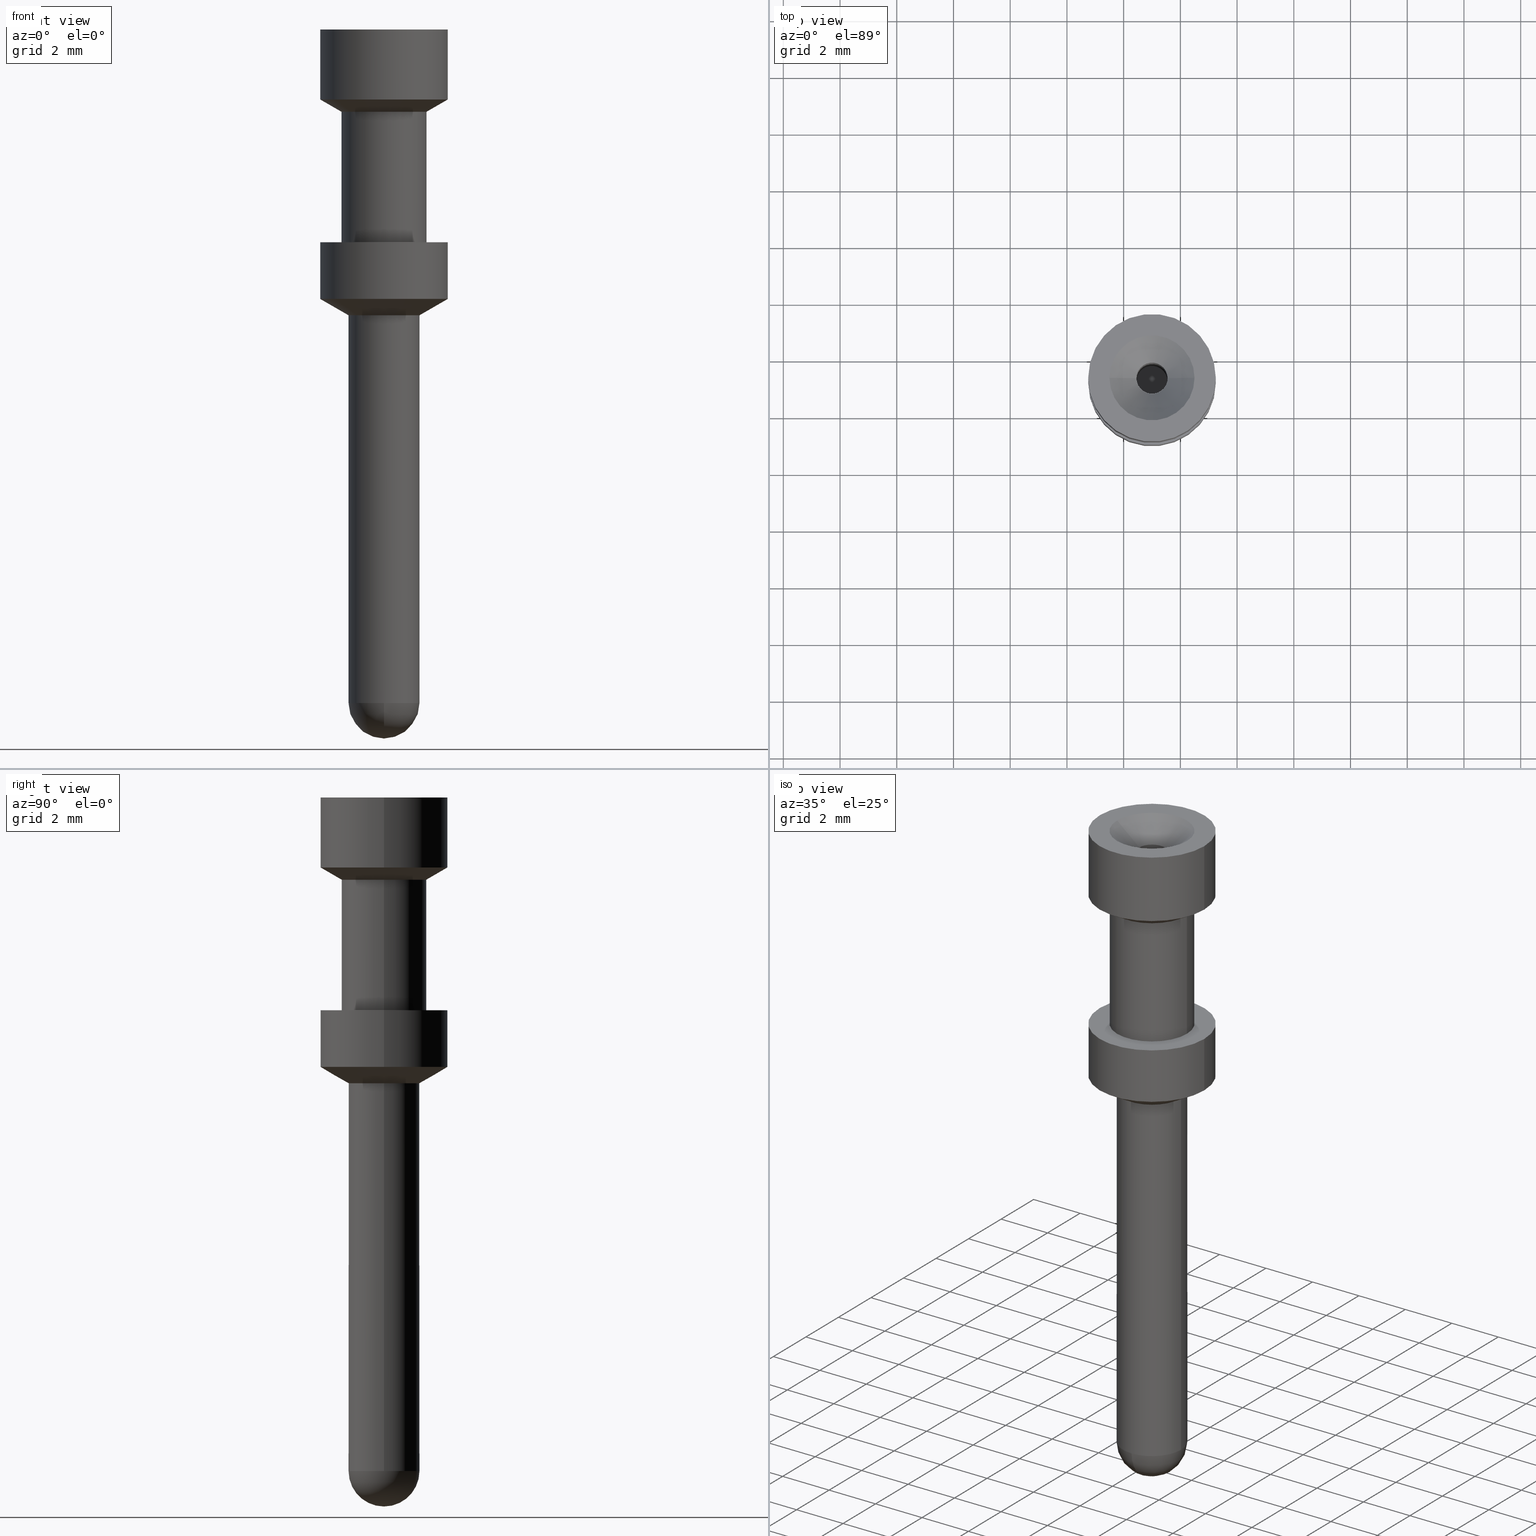
[diagram: canonical four-view strip — front | top / right | iso, engineering-drawing reading convention]
A machine part, canonical four-view strip (front | top / right | iso — engineering-drawing reading convention). The complete STEP part file that produces these views, byte-faithful:
ISO-10303-21;
HEADER;
FILE_DESCRIPTION(('Creo Elements/Direct Modeling STEP Export'),'2;1');
FILE_NAME(
'C:/Users/TECCAD~1/AppData/Local/Temp/0ln7uvk48h760uf2188/0ln7uvk48h760u
h2188','2017-01-02T14:24:07',(''),(''),
'PTC Creo Elements/Direct Modeling STEP processor for AP214 (Solid Model
)',
'PTC Creo Elements/Direct Modeling 19.0E  27-Jun-2016 (C) Parametric Tec
hnology GmbH','');
FILE_SCHEMA(('AUTOMOTIVE_DESIGN { 1 0 10303 214 1 1 1 1 }'));
ENDSEC;
DATA;
#10=CARTESIAN_POINT('',(31.1869705,72.157183,-6.6));
#20=DIRECTION('',(-0.,1.,1.83697019872103E-16));
#30=DIRECTION('',(1.,0.,0.));
#40=AXIS2_PLACEMENT_3D('',#10,#20,#30);
#50=PLANE('',#40);
#60=CARTESIAN_POINT('',(33.587952,72.157183,-6.6));
#70=DIRECTION('',(0.,1.,1.83697019872103E-16));
#80=DIRECTION('',(1.,0.,0.));
#90=AXIS2_PLACEMENT_3D('',#60,#70,#80);
#100=CIRCLE('',#90,1.5);
#110=CARTESIAN_POINT('',(32.087952,72.157183,-6.6));
#120=VERTEX_POINT('',#110);
#130=CARTESIAN_POINT('',(35.087952,72.157183,-6.6));
#140=VERTEX_POINT('',#130);
#150=EDGE_CURVE('',#120,#140,#100,.T.);
#160=ORIENTED_EDGE('',*,*,#150,.T.);
#170=EDGE_CURVE('',#140,#120,#100,.T.);
#180=ORIENTED_EDGE('',*,*,#170,.T.);
#190=EDGE_LOOP('',(#180,#160));
#200=FACE_BOUND('',#190,.T.);
#210=CARTESIAN_POINT('',(33.587952,72.157183,-6.59999999999999));
#220=DIRECTION('',(0.,-1.,-1.83697019872103E-16));
#230=DIRECTION('',(1.,0.,0.));
#240=AXIS2_PLACEMENT_3D('',#210,#220,#230);
#250=CIRCLE('',#240,2.25);
#260=CARTESIAN_POINT('',(35.837952,72.157183,-6.59999999999999));
#270=VERTEX_POINT('',#260);
#280=CARTESIAN_POINT('',(31.337952,72.157183,-6.59999999999999));
#290=VERTEX_POINT('',#280);
#300=EDGE_CURVE('',#270,#290,#250,.T.);
#310=ORIENTED_EDGE('',*,*,#300,.T.);
#320=EDGE_CURVE('',#290,#270,#250,.T.);
#330=ORIENTED_EDGE('',*,*,#320,.T.);
#340=EDGE_LOOP('',(#330,#310));
#350=FACE_OUTER_BOUND('',#340,.T.);
#360=ADVANCED_FACE('',(#200,#350),#50,.F.);
#370=COLOUR_RGB('',0.752941250801086,0.600000023841858,0.129411771893501
);
#380=FILL_AREA_STYLE_COLOUR('',#370);
#390=FILL_AREA_STYLE('',(#380));
#400=SURFACE_STYLE_FILL_AREA(#390);
#410=SURFACE_SIDE_STYLE('',(#400));
#420=SURFACE_STYLE_USAGE(.BOTH.,#410);
#430=PRESENTATION_STYLE_ASSIGNMENT((#420));
#440=CARTESIAN_POINT('',(33.587952,81.7230824532382,-6.59999999999999));
#450=DIRECTION('',(0.,-1.,0.));
#460=DIRECTION('',(-1.,0.,0.));
#470=AXIS2_PLACEMENT_3D('',#440,#450,#460);
#480=CYLINDRICAL_SURFACE('',#470,1.25);
#490=CARTESIAN_POINT('',(32.337952,81.7230824532382,-6.59999999999999));
#500=DIRECTION('',(0.,-1.,0.));
#510=VECTOR('',#500,1.);
#520=LINE('',#490,#510);
#530=CARTESIAN_POINT('',(32.337952,88.407183,-6.59999999999999));
#540=VERTEX_POINT('',#530);
#550=CARTESIAN_POINT('',(32.337952,74.7345332691897,-6.59999999999999));
#560=VERTEX_POINT('',#550);
#570=EDGE_CURVE('',#540,#560,#520,.T.);
#580=ORIENTED_EDGE('',*,*,#570,.T.);
#590=CARTESIAN_POINT('',(33.587952,88.407183,-6.59999999999999));
#600=DIRECTION('',(0.,-1.,0.));
#610=DIRECTION('',(-1.,0.,0.));
#620=AXIS2_PLACEMENT_3D('',#590,#600,#610);
#630=CIRCLE('',#620,1.25);
#640=CARTESIAN_POINT('',(33.587952,88.407183,-5.34999999999999));
#650=VERTEX_POINT('',#640);
#660=EDGE_CURVE('',#650,#540,#630,.T.);
#670=ORIENTED_EDGE('',*,*,#660,.T.);
#680=CARTESIAN_POINT('',(34.837952,88.407183,-6.59999999999999));
#690=VERTEX_POINT('',#680);
#700=EDGE_CURVE('',#690,#650,#630,.T.);
#710=ORIENTED_EDGE('',*,*,#700,.T.);
#720=CARTESIAN_POINT('',(34.837952,81.7230824532382,-6.59999999999999));
#730=DIRECTION('',(0.,-1.,0.));
#740=VECTOR('',#730,1.);
#750=LINE('',#720,#740);
#760=CARTESIAN_POINT('',(34.837952,74.7345332691897,-6.59999999999999));
#770=VERTEX_POINT('',#760);
#780=EDGE_CURVE('',#690,#770,#750,.T.);
#790=ORIENTED_EDGE('',*,*,#780,.F.);
#800=CARTESIAN_POINT('',(33.587952,74.7345332691897,-6.59999999999999));
#810=DIRECTION('',(0.,-1.,0.));
#820=DIRECTION('',(-1.,0.,0.));
#830=AXIS2_PLACEMENT_3D('',#800,#810,#820);
#840=CIRCLE('',#830,1.25);
#850=EDGE_CURVE('',#770,#560,#840,.T.);
#860=ORIENTED_EDGE('',*,*,#850,.F.);
#870=EDGE_LOOP('',(#860,#790,#710,#670,#580));
#880=FACE_OUTER_BOUND('',#870,.T.);
#890=ADVANCED_FACE('',(#880),#480,.T.);
#900=COLOUR_RGB('',0.752941250801086,0.600000023841858,0.129411771893501
);
#910=FILL_AREA_STYLE_COLOUR('',#900);
#920=FILL_AREA_STYLE('',(#910));
#930=SURFACE_STYLE_FILL_AREA(#920);
#940=SURFACE_SIDE_STYLE('',(#930));
#950=SURFACE_STYLE_USAGE(.BOTH.,#940);
#960=PRESENTATION_STYLE_ASSIGNMENT((#950));
#970=CARTESIAN_POINT('',(33.587952,74.5959692045842,-6.59999999999999));
#980=DIRECTION('',(0.,-1.,0.));
#990=DIRECTION('',(-1.,-0.,0.));
#1000=AXIS2_PLACEMENT_3D('',#970,#980,#990);
#1010=CONICAL_SURFACE('',#1000,1.49000000000001,1.04719755119656);
#1020=CARTESIAN_POINT('',(35.077952,74.5959692045842,-6.59999999999999))
;
#1030=DIRECTION('',(0.866025403784419,-0.500000000000034,0.));
#1040=VECTOR('',#1030,1.72050380218513);
#1050=LINE('',#1020,#1040);
#1060=CARTESIAN_POINT('',(35.837952,74.157183,-6.59999999999999));
#1070=VERTEX_POINT('',#1060);
#1080=EDGE_CURVE('',#770,#1070,#1050,.T.);
#1090=ORIENTED_EDGE('',*,*,#1080,.T.);
#1100=EDGE_CURVE('',#560,#770,#840,.T.);
#1110=ORIENTED_EDGE('',*,*,#1100,.T.);
#1120=CARTESIAN_POINT('',(32.097952,74.5959692045842,-6.59999999999999))
;
#1130=DIRECTION('',(-0.866025403784419,-0.500000000000034,0.));
#1140=VECTOR('',#1130,1.72050380218513);
#1150=LINE('',#1120,#1140);
#1160=CARTESIAN_POINT('',(31.337952,74.157183,-6.59999999999999));
#1170=VERTEX_POINT('',#1160);
#1180=EDGE_CURVE('',#560,#1170,#1150,.T.);
#1190=ORIENTED_EDGE('',*,*,#1180,.F.);
#1200=CARTESIAN_POINT('',(33.587952,74.157183,-6.59999999999999));
#1210=DIRECTION('',(0.,-1.,0.));
#1220=DIRECTION('',(-1.,0.,0.));
#1230=AXIS2_PLACEMENT_3D('',#1200,#1210,#1220);
#1240=CIRCLE('',#1230,2.25);
#1250=EDGE_CURVE('',#1170,#1070,#1240,.T.);
#1260=ORIENTED_EDGE('',*,*,#1250,.F.);
#1270=EDGE_LOOP('',(#1260,#1190,#1110,#1090));
#1280=FACE_OUTER_BOUND('',#1270,.T.);
#1290=ADVANCED_FACE('',(#1280),#1010,.T.);
#1300=COLOUR_RGB('',0.752941250801086,0.600000023841858,
0.129411771893501);
#1310=FILL_AREA_STYLE_COLOUR('',#1300);
#1320=FILL_AREA_STYLE('',(#1310));
#1330=SURFACE_STYLE_FILL_AREA(#1320);
#1340=SURFACE_SIDE_STYLE('',(#1330));
#1350=SURFACE_STYLE_USAGE(.BOTH.,#1340);
#1360=PRESENTATION_STYLE_ASSIGNMENT((#1350));
#1370=CARTESIAN_POINT('',(33.587952,88.407183,-6.59999999999999));
#1380=DIRECTION('',(0.,1.,0.));
#1390=DIRECTION('',(0.,0.,1.));
#1400=AXIS2_PLACEMENT_3D('',#1370,#1380,#1390);
#1410=SPHERICAL_SURFACE('',#1400,1.25);
#1420=CARTESIAN_POINT('',(33.587952,88.407183,-7.84999999999999));
#1430=VERTEX_POINT('',#1420);
#1440=EDGE_CURVE('',#540,#1430,#630,.T.);
#1450=ORIENTED_EDGE('',*,*,#1440,.F.);
#1460=CARTESIAN_POINT('',(33.587952,88.407183,-6.59999999999999));
#1470=DIRECTION('',(1.,0.,0.));
#1480=DIRECTION('',(0.,-1.,0.));
#1490=AXIS2_PLACEMENT_3D('',#1460,#1470,#1480);
#1500=CIRCLE('',#1490,1.25);
#1510=CARTESIAN_POINT('',(33.587952,89.657183,-6.59999999999999));
#1520=VERTEX_POINT('',#1510);
#1530=EDGE_CURVE('',#1430,#1520,#1500,.T.);
#1540=ORIENTED_EDGE('',*,*,#1530,.F.);
#1550=EDGE_CURVE('',#1520,#650,#1500,.T.);
#1560=ORIENTED_EDGE('',*,*,#1550,.F.);
#1570=ORIENTED_EDGE('',*,*,#660,.F.);
#1580=EDGE_LOOP('',(#1570,#1560,#1540,#1450));
#1590=FACE_OUTER_BOUND('',#1580,.T.);
#1600=ADVANCED_FACE('',(#1590),#1410,.T.);
#1610=COLOUR_RGB('',0.752941250801086,0.600000023841858,
0.129411771893501);
#1620=FILL_AREA_STYLE_COLOUR('',#1610);
#1630=FILL_AREA_STYLE('',(#1620));
#1640=SURFACE_STYLE_FILL_AREA(#1630);
#1650=SURFACE_SIDE_STYLE('',(#1640));
#1660=SURFACE_STYLE_USAGE(.BOTH.,#1650);
#1670=PRESENTATION_STYLE_ASSIGNMENT((#1660));
#1680=CARTESIAN_POINT('',(33.587952,72.157183,-6.59999999999999));
#1690=DIRECTION('',(0.,-1.,-1.83697019872103E-16));
#1700=DIRECTION('',(1.,0.,0.));
#1710=AXIS2_PLACEMENT_3D('',#1680,#1690,#1700);
#1720=CYLINDRICAL_SURFACE('',#1710,2.25);
#1730=CARTESIAN_POINT('',(35.837952,72.157183,-6.59999999999999));
#1740=DIRECTION('',(0.,-1.,-1.83697019872103E-16));
#1750=VECTOR('',#1740,1.);
#1760=LINE('',#1730,#1750);
#1770=EDGE_CURVE('',#1070,#270,#1760,.T.);
#1780=ORIENTED_EDGE('',*,*,#1770,.T.);
#1790=ORIENTED_EDGE('',*,*,#1250,.T.);
#1800=CARTESIAN_POINT('',(31.337952,72.157183,-6.59999999999999));
#1810=DIRECTION('',(0.,-1.,-1.83697019872103E-16));
#1820=VECTOR('',#1810,1.);
#1830=LINE('',#1800,#1820);
#1840=EDGE_CURVE('',#1170,#290,#1830,.T.);
#1850=ORIENTED_EDGE('',*,*,#1840,.F.);
#1860=ORIENTED_EDGE('',*,*,#320,.F.);
#1870=EDGE_LOOP('',(#1860,#1850,#1790,#1780));
#1880=FACE_OUTER_BOUND('',#1870,.T.);
#1890=ADVANCED_FACE('',(#1880),#1720,.T.);
#1900=COLOUR_RGB('',0.752941250801086,0.600000023841858,
0.129411771893501);
#1910=FILL_AREA_STYLE_COLOUR('',#1900);
#1920=FILL_AREA_STYLE('',(#1910));
#1930=SURFACE_STYLE_FILL_AREA(#1920);
#1940=SURFACE_SIDE_STYLE('',(#1930));
#1950=SURFACE_STYLE_USAGE(.BOTH.,#1940);
#1960=PRESENTATION_STYLE_ASSIGNMENT((#1950));
#1970=CARTESIAN_POINT('',(33.587952,69.7272791894324,-6.6));
#1980=DIRECTION('',(0.,1.,1.83697019872103E-16));
#1990=DIRECTION('',(1.,0.,0.));
#2000=AXIS2_PLACEMENT_3D('',#1970,#1980,#1990);
#2010=CYLINDRICAL_SURFACE('',#2000,1.5);
#2020=CARTESIAN_POINT('',(32.087952,69.7272791894324,-6.6));
#2030=DIRECTION('',(0.,1.,1.83697019872103E-16));
#2040=VECTOR('',#2030,1.);
#2050=LINE('',#2020,#2040);
#2060=CARTESIAN_POINT('',(32.087952,67.557183,-6.6));
#2070=VERTEX_POINT('',#2060);
#2080=EDGE_CURVE('',#2070,#120,#2050,.T.);
#2090=ORIENTED_EDGE('',*,*,#2080,.T.);
#2100=CARTESIAN_POINT('',(33.587952,67.557183,-6.6));
#2110=DIRECTION('',(0.,-1.,-1.83697019872103E-16));
#2120=DIRECTION('',(-1.,9.66075982551395E-47,-5.25907270147341E-31));
#2130=AXIS2_PLACEMENT_3D('',#2100,#2110,#2120);
#2140=CIRCLE('',#2130,1.5);
#2150=CARTESIAN_POINT('',(35.087952,67.557183,-6.6));
#2160=VERTEX_POINT('',#2150);
#2170=EDGE_CURVE('',#2070,#2160,#2140,.T.);
#2180=ORIENTED_EDGE('',*,*,#2170,.F.);
#2190=CARTESIAN_POINT('',(35.087952,69.7272791894324,-6.6));
#2200=DIRECTION('',(0.,1.,1.83697019872103E-16));
#2210=VECTOR('',#2200,1.);
#2220=LINE('',#2190,#2210);
#2230=EDGE_CURVE('',#2160,#140,#2220,.T.);
#2240=ORIENTED_EDGE('',*,*,#2230,.F.);
#2250=ORIENTED_EDGE('',*,*,#170,.F.);
#2260=EDGE_LOOP('',(#2250,#2240,#2180,#2090));
#2270=FACE_OUTER_BOUND('',#2260,.T.);
#2280=ADVANCED_FACE('',(#2270),#2010,.T.);
#2290=COLOUR_RGB('',0.752941250801086,0.600000023841858,
0.129411771893501);
#2300=FILL_AREA_STYLE_COLOUR('',#2290);
#2310=FILL_AREA_STYLE('',(#2300));
#2320=SURFACE_STYLE_FILL_AREA(#2310);
#2330=SURFACE_SIDE_STYLE('',(#2320));
#2340=SURFACE_STYLE_USAGE(.BOTH.,#2330);
#2350=PRESENTATION_STYLE_ASSIGNMENT((#2340));
#2360=CARTESIAN_POINT('',(31.6858875,64.657183,-6.6));
#2370=DIRECTION('',(-0.,-1.,-1.83697019872103E-16));
#2380=DIRECTION('',(-1.,0.,0.));
#2390=AXIS2_PLACEMENT_3D('',#2360,#2370,#2380);
#2400=PLANE('',#2390);
#2410=CARTESIAN_POINT('',(33.587952,64.657183,-6.59999999999999));
#2420=DIRECTION('',(0.,-1.,0.));
#2430=DIRECTION('',(1.,0.,0.));
#2440=AXIS2_PLACEMENT_3D('',#2410,#2420,#2430);
#2450=CIRCLE('',#2440,1.5);
#2460=CARTESIAN_POINT('',(35.087952,64.657183,-6.59999999999999));
#2470=VERTEX_POINT('',#2460);
#2480=CARTESIAN_POINT('',(32.087952,64.657183,-6.59999999999999));
#2490=VERTEX_POINT('',#2480);
#2500=EDGE_CURVE('',#2470,#2490,#2450,.T.);
#2510=ORIENTED_EDGE('',*,*,#2500,.F.);
#2520=EDGE_CURVE('',#2490,#2470,#2450,.T.);
#2530=ORIENTED_EDGE('',*,*,#2520,.F.);
#2540=EDGE_LOOP('',(#2530,#2510));
#2550=FACE_BOUND('',#2540,.T.);
#2560=CARTESIAN_POINT('',(33.587952,64.657183,-6.59999999999999));
#2570=DIRECTION('',(0.,1.,0.));
#2580=DIRECTION('',(1.,0.,0.));
#2590=AXIS2_PLACEMENT_3D('',#2560,#2570,#2580);
#2600=CIRCLE('',#2590,2.25);
#2610=CARTESIAN_POINT('',(35.837952,64.657183,-6.59999999999999));
#2620=VERTEX_POINT('',#2610);
#2630=CARTESIAN_POINT('',(31.337952,64.657183,-6.59999999999999));
#2640=VERTEX_POINT('',#2630);
#2650=EDGE_CURVE('',#2620,#2640,#2600,.T.);
#2660=ORIENTED_EDGE('',*,*,#2650,.F.);
#2670=EDGE_CURVE('',#2640,#2620,#2600,.T.);
#2680=ORIENTED_EDGE('',*,*,#2670,.F.);
#2690=EDGE_LOOP('',(#2680,#2660));
#2700=FACE_OUTER_BOUND('',#2690,.T.);
#2710=ADVANCED_FACE('',(#2550,#2700),#2400,.T.);
#2720=COLOUR_RGB('',0.752941250801086,0.600000023841858,
0.129411771893501);
#2730=FILL_AREA_STYLE_COLOUR('',#2720);
#2740=FILL_AREA_STYLE('',(#2730));
#2750=SURFACE_STYLE_FILL_AREA(#2740);
#2760=SURFACE_SIDE_STYLE('',(#2750));
#2770=SURFACE_STYLE_USAGE(.BOTH.,#2760);
#2780=PRESENTATION_STYLE_ASSIGNMENT((#2770));
#2790=CARTESIAN_POINT('',(33.587952,65.8906766490539,-6.59999999999999))
;
#2800=DIRECTION('',(0.,1.,0.));
#2810=DIRECTION('',(1.,0.,0.));
#2820=AXIS2_PLACEMENT_3D('',#2790,#2800,#2810);
#2830=CYLINDRICAL_SURFACE('',#2820,2.25);
#2840=CARTESIAN_POINT('',(35.837952,65.8906766490539,-6.59999999999999))
;
#2850=DIRECTION('',(0.,1.,0.));
#2860=VECTOR('',#2850,1.);
#2870=LINE('',#2840,#2860);
#2880=CARTESIAN_POINT('',(35.837952,67.1241702981078,-6.59999999999999))
;
#2890=VERTEX_POINT('',#2880);
#2900=EDGE_CURVE('',#2620,#2890,#2870,.T.);
#2910=ORIENTED_EDGE('',*,*,#2900,.T.);
#2920=ORIENTED_EDGE('',*,*,#2670,.T.);
#2930=CARTESIAN_POINT('',(31.337952,65.8906766490539,-6.59999999999999))
;
#2940=DIRECTION('',(0.,1.,0.));
#2950=VECTOR('',#2940,1.);
#2960=LINE('',#2930,#2950);
#2970=CARTESIAN_POINT('',(31.337952,67.1241702981078,-6.59999999999999))
;
#2980=VERTEX_POINT('',#2970);
#2990=EDGE_CURVE('',#2640,#2980,#2960,.T.);
#3000=ORIENTED_EDGE('',*,*,#2990,.F.);
#3010=CARTESIAN_POINT('',(33.587952,67.1241702981078,-6.59999999999999))
;
#3020=DIRECTION('',(0.,1.,0.));
#3030=DIRECTION('',(1.,0.,0.));
#3040=AXIS2_PLACEMENT_3D('',#3010,#3020,#3030);
#3050=CIRCLE('',#3040,2.25);
#3060=EDGE_CURVE('',#2980,#2890,#3050,.T.);
#3070=ORIENTED_EDGE('',*,*,#3060,.F.);
#3080=EDGE_LOOP('',(#3070,#3000,#2920,#2910));
#3090=FACE_OUTER_BOUND('',#3080,.T.);
#3100=ADVANCED_FACE('',(#3090),#2830,.T.);
#3110=COLOUR_RGB('',0.752941250801086,0.600000023841858,
0.129411771893501);
#3120=FILL_AREA_STYLE_COLOUR('',#3110);
#3130=FILL_AREA_STYLE('',(#3120));
#3140=SURFACE_STYLE_FILL_AREA(#3130);
#3150=SURFACE_SIDE_STYLE('',(#3140));
#3160=SURFACE_STYLE_USAGE(.BOTH.,#3150);
#3170=PRESENTATION_STYLE_ASSIGNMENT((#3160));
#3180=CARTESIAN_POINT('',(33.587952,67.672653053838,-6.6));
#3190=DIRECTION('',(0.,-1.,0.));
#3200=DIRECTION('',(-1.,-0.,0.));
#3210=AXIS2_PLACEMENT_3D('',#3180,#3190,#3200);
#3220=CONICAL_SURFACE('',#3210,1.3,1.0471975511966);
#3230=CARTESIAN_POINT('',(32.287952,67.672653053838,-6.6));
#3240=DIRECTION('',(-0.866025403784439,-0.499999999999999,0.));
#3250=VECTOR('',#3240,1.50111069989302);
#3260=LINE('',#3230,#3250);
#3270=EDGE_CURVE('',#2070,#2980,#3260,.T.);
#3280=ORIENTED_EDGE('',*,*,#3270,.F.);
#3290=EDGE_CURVE('',#2890,#2980,#3050,.T.);
#3300=ORIENTED_EDGE('',*,*,#3290,.T.);
#3310=CARTESIAN_POINT('',(34.887952,67.672653053838,-6.6));
#3320=DIRECTION('',(0.866025403784439,-0.499999999999999,0.));
#3330=VECTOR('',#3320,1.50111069989302);
#3340=LINE('',#3310,#3330);
#3350=EDGE_CURVE('',#2160,#2890,#3340,.T.);
#3360=ORIENTED_EDGE('',*,*,#3350,.T.);
#3370=ORIENTED_EDGE('',*,*,#2170,.T.);
#3380=EDGE_LOOP('',(#3370,#3360,#3300,#3280));
#3390=FACE_OUTER_BOUND('',#3380,.T.);
#3400=ADVANCED_FACE('',(#3390),#3220,.T.);
#3410=COLOUR_RGB('',0.752941250801086,0.600000023841858,
0.129411771893501);
#3420=FILL_AREA_STYLE_COLOUR('',#3410);
#3430=FILL_AREA_STYLE('',(#3420));
#3440=SURFACE_STYLE_FILL_AREA(#3430);
#3450=SURFACE_SIDE_STYLE('',(#3440));
#3460=SURFACE_STYLE_USAGE(.BOTH.,#3450);
#3470=PRESENTATION_STYLE_ASSIGNMENT((#3460));
#3480=CARTESIAN_POINT('',(34.4711359235852,72.157183,-5.13594903847896))
;
#3490=DIRECTION('',(0.,-1.,0.));
#3500=DIRECTION('',(1.,0.,0.));
#3510=AXIS2_PLACEMENT_3D('',#3480,#3490,#3500);
#3520=PLANE('',#3510);
#3530=CARTESIAN_POINT('',(33.587952,72.157183,-6.59999999999999));
#3540=DIRECTION('',(0.,-1.,0.));
#3550=DIRECTION('',(1.,0.,0.));
#3560=AXIS2_PLACEMENT_3D('',#3530,#3540,#3550);
#3570=CIRCLE('',#3560,0.55);
#3580=CARTESIAN_POINT('',(34.137952,72.157183,-6.59999999999999));
#3590=VERTEX_POINT('',#3580);
#3600=CARTESIAN_POINT('',(33.037952,72.157183,-6.59999999999999));
#3610=VERTEX_POINT('',#3600);
#3620=EDGE_CURVE('',#3590,#3610,#3570,.T.);
#3630=ORIENTED_EDGE('',*,*,#3620,.T.);
#3640=EDGE_CURVE('',#3610,#3590,#3570,.T.);
#3650=ORIENTED_EDGE('',*,*,#3640,.T.);
#3660=EDGE_LOOP('',(#3650,#3630));
#3670=FACE_OUTER_BOUND('',#3660,.T.);
#3680=ADVANCED_FACE('',(#3670),#3520,.T.);
#3690=COLOUR_RGB('',0.752941250801086,0.600000023841858,
0.129411771893501);
#3700=FILL_AREA_STYLE_COLOUR('',#3690);
#3710=FILL_AREA_STYLE('',(#3700));
#3720=SURFACE_STYLE_FILL_AREA(#3710);
#3730=SURFACE_SIDE_STYLE('',(#3720));
#3740=SURFACE_STYLE_USAGE(.BOTH.,#3730);
#3750=PRESENTATION_STYLE_ASSIGNMENT((#3740));
#3760=CARTESIAN_POINT('',(33.587952,64.657183,-6.59999999999999));
#3770=DIRECTION('',(0.,-1.,0.));
#3780=DIRECTION('',(1.,0.,0.));
#3790=AXIS2_PLACEMENT_3D('',#3760,#3770,#3780);
#3800=CYLINDRICAL_SURFACE('',#3790,0.55);
#3810=CARTESIAN_POINT('',(34.137952,64.657183,-6.59999999999999));
#3820=DIRECTION('',(0.,-1.,0.));
#3830=VECTOR('',#3820,1.);
#3840=LINE('',#3810,#3830);
#3850=CARTESIAN_POINT('',(34.137952,65.4543276496184,-6.59999999999999))
;
#3860=VERTEX_POINT('',#3850);
#3870=EDGE_CURVE('',#3590,#3860,#3840,.T.);
#3880=ORIENTED_EDGE('',*,*,#3870,.F.);
#3890=CARTESIAN_POINT('',(33.587952,65.4543276496184,-6.59999999999999))
;
#3900=DIRECTION('',(0.,-1.,0.));
#3910=DIRECTION('',(1.,0.,0.));
#3920=AXIS2_PLACEMENT_3D('',#3890,#3900,#3910);
#3930=CIRCLE('',#3920,0.549999999999999);
#3940=CARTESIAN_POINT('',(33.037952,65.4543276496184,-6.59999999999999))
;
#3950=VERTEX_POINT('',#3940);
#3960=EDGE_CURVE('',#3950,#3860,#3930,.T.);
#3970=ORIENTED_EDGE('',*,*,#3960,.T.);
#3980=CARTESIAN_POINT('',(33.037952,64.657183,-6.59999999999999));
#3990=DIRECTION('',(0.,-1.,0.));
#4000=VECTOR('',#3990,1.);
#4010=LINE('',#3980,#4000);
#4020=EDGE_CURVE('',#3610,#3950,#4010,.T.);
#4030=ORIENTED_EDGE('',*,*,#4020,.T.);
#4040=ORIENTED_EDGE('',*,*,#3640,.F.);
#4050=EDGE_LOOP('',(#4040,#4030,#3970,#3880));
#4060=FACE_OUTER_BOUND('',#4050,.T.);
#4070=ADVANCED_FACE('',(#4060),#3800,.F.);
#4080=COLOUR_RGB('',0.752941250801086,0.600000023841858,
0.129411771893501);
#4090=FILL_AREA_STYLE_COLOUR('',#4080);
#4100=FILL_AREA_STYLE('',(#4090));
#4110=SURFACE_STYLE_FILL_AREA(#4100);
#4120=SURFACE_SIDE_STYLE('',(#4110));
#4130=SURFACE_STYLE_USAGE(.BOTH.,#4120);
#4140=PRESENTATION_STYLE_ASSIGNMENT((#4130));
#4150=CARTESIAN_POINT('',(33.587952,64.657183,-6.59999999999999));
#4160=DIRECTION('',(0.,-1.,0.));
#4170=DIRECTION('',(1.,0.,0.));
#4180=AXIS2_PLACEMENT_3D('',#4150,#4160,#4170);
#4190=CONICAL_SURFACE('',#4180,1.5,0.872664625997167);
#4200=CARTESIAN_POINT('',(35.087952,64.657183,-6.59999999999999));
#4210=DIRECTION('',(0.766044443118979,-0.642787609686538,0.));
#4220=VECTOR('',#4210,1.95811093399842);
#4230=LINE('',#4200,#4220);
#4240=EDGE_CURVE('',#3860,#2470,#4230,.T.);
#4250=ORIENTED_EDGE('',*,*,#4240,.F.);
#4260=ORIENTED_EDGE('',*,*,#2520,.T.);
#4270=CARTESIAN_POINT('',(32.087952,64.657183,-6.59999999999999));
#4280=DIRECTION('',(-0.766044443118979,-0.642787609686538,0.));
#4290=VECTOR('',#4280,1.95811093399842);
#4300=LINE('',#4270,#4290);
#4310=EDGE_CURVE('',#3950,#2490,#4300,.T.);
#4320=ORIENTED_EDGE('',*,*,#4310,.T.);
#4330=ORIENTED_EDGE('',*,*,#3960,.F.);
#4340=EDGE_LOOP('',(#4330,#4320,#4260,#4250));
#4350=FACE_OUTER_BOUND('',#4340,.T.);
#4360=ADVANCED_FACE('',(#4350),#4190,.F.);
#4370=COLOUR_RGB('',0.752941250801086,0.600000023841858,
0.129411771893501);
#4380=FILL_AREA_STYLE_COLOUR('',#4370);
#4390=FILL_AREA_STYLE('',(#4380));
#4400=SURFACE_STYLE_FILL_AREA(#4390);
#4410=SURFACE_SIDE_STYLE('',(#4400));
#4420=SURFACE_STYLE_USAGE(.BOTH.,#4410);
#4430=PRESENTATION_STYLE_ASSIGNMENT((#4420));
#4440=CARTESIAN_POINT('',(33.587952,64.657183,-6.59999999999999));
#4450=DIRECTION('',(0.,-1.,0.));
#4460=DIRECTION('',(1.,0.,0.));
#4470=AXIS2_PLACEMENT_3D('',#4440,#4450,#4460);
#4480=CONICAL_SURFACE('',#4470,1.5,0.872664625997167);
#4490=EDGE_CURVE('',#3860,#3950,#3930,.T.);
#4500=ORIENTED_EDGE('',*,*,#4490,.F.);
#4510=ORIENTED_EDGE('',*,*,#4310,.F.);
#4520=ORIENTED_EDGE('',*,*,#2500,.T.);
#4530=ORIENTED_EDGE('',*,*,#4240,.T.);
#4540=EDGE_LOOP('',(#4530,#4520,#4510,#4500));
#4550=FACE_OUTER_BOUND('',#4540,.T.);
#4560=ADVANCED_FACE('',(#4550),#4480,.F.);
#4570=COLOUR_RGB('',0.752941250801086,0.600000023841858,
0.129411771893501);
#4580=FILL_AREA_STYLE_COLOUR('',#4570);
#4590=FILL_AREA_STYLE('',(#4580));
#4600=SURFACE_STYLE_FILL_AREA(#4590);
#4610=SURFACE_SIDE_STYLE('',(#4600));
#4620=SURFACE_STYLE_USAGE(.BOTH.,#4610);
#4630=PRESENTATION_STYLE_ASSIGNMENT((#4620));
#4640=CARTESIAN_POINT('',(33.587952,72.157183,-6.59999999999999));
#4650=DIRECTION('',(0.,-1.,-1.83697019872103E-16));
#4660=DIRECTION('',(1.,0.,0.));
#4670=AXIS2_PLACEMENT_3D('',#4640,#4650,#4660);
#4680=CYLINDRICAL_SURFACE('',#4670,2.25);
#4690=ORIENTED_EDGE('',*,*,#300,.F.);
#4700=ORIENTED_EDGE('',*,*,#1840,.T.);
#4710=EDGE_CURVE('',#1070,#1170,#1240,.T.);
#4720=ORIENTED_EDGE('',*,*,#4710,.T.);
#4730=ORIENTED_EDGE('',*,*,#1770,.F.);
#4740=EDGE_LOOP('',(#4730,#4720,#4700,#4690));
#4750=FACE_OUTER_BOUND('',#4740,.T.);
#4760=ADVANCED_FACE('',(#4750),#4680,.T.);
#4770=COLOUR_RGB('',0.752941250801086,0.600000023841858,
0.129411771893501);
#4780=FILL_AREA_STYLE_COLOUR('',#4770);
#4790=FILL_AREA_STYLE('',(#4780));
#4800=SURFACE_STYLE_FILL_AREA(#4790);
#4810=SURFACE_SIDE_STYLE('',(#4800));
#4820=SURFACE_STYLE_USAGE(.BOTH.,#4810);
#4830=PRESENTATION_STYLE_ASSIGNMENT((#4820));
#4840=CARTESIAN_POINT('',(33.587952,65.8906766490539,-6.59999999999999))
;
#4850=DIRECTION('',(0.,1.,0.));
#4860=DIRECTION('',(1.,0.,0.));
#4870=AXIS2_PLACEMENT_3D('',#4840,#4850,#4860);
#4880=CYLINDRICAL_SURFACE('',#4870,2.25);
#4890=ORIENTED_EDGE('',*,*,#3290,.F.);
#4900=ORIENTED_EDGE('',*,*,#2990,.T.);
#4910=ORIENTED_EDGE('',*,*,#2650,.T.);
#4920=ORIENTED_EDGE('',*,*,#2900,.F.);
#4930=EDGE_LOOP('',(#4920,#4910,#4900,#4890));
#4940=FACE_OUTER_BOUND('',#4930,.T.);
#4950=ADVANCED_FACE('',(#4940),#4880,.T.);
#4960=COLOUR_RGB('',0.752941250801086,0.600000023841858,
0.129411771893501);
#4970=FILL_AREA_STYLE_COLOUR('',#4960);
#4980=FILL_AREA_STYLE('',(#4970));
#4990=SURFACE_STYLE_FILL_AREA(#4980);
#5000=SURFACE_SIDE_STYLE('',(#4990));
#5010=SURFACE_STYLE_USAGE(.BOTH.,#5000);
#5020=PRESENTATION_STYLE_ASSIGNMENT((#5010));
#5030=CARTESIAN_POINT('',(33.587952,64.657183,-6.59999999999999));
#5040=DIRECTION('',(0.,-1.,0.));
#5050=DIRECTION('',(1.,0.,0.));
#5060=AXIS2_PLACEMENT_3D('',#5030,#5040,#5050);
#5070=CYLINDRICAL_SURFACE('',#5060,0.55);
#5080=ORIENTED_EDGE('',*,*,#3620,.F.);
#5090=ORIENTED_EDGE('',*,*,#4020,.F.);
#5100=ORIENTED_EDGE('',*,*,#4490,.T.);
#5110=ORIENTED_EDGE('',*,*,#3870,.T.);
#5120=EDGE_LOOP('',(#5110,#5100,#5090,#5080));
#5130=FACE_OUTER_BOUND('',#5120,.T.);
#5140=ADVANCED_FACE('',(#5130),#5070,.F.);
#5150=COLOUR_RGB('',0.752941250801086,0.600000023841858,
0.129411771893501);
#5160=FILL_AREA_STYLE_COLOUR('',#5150);
#5170=FILL_AREA_STYLE('',(#5160));
#5180=SURFACE_STYLE_FILL_AREA(#5170);
#5190=SURFACE_SIDE_STYLE('',(#5180));
#5200=SURFACE_STYLE_USAGE(.BOTH.,#5190);
#5210=PRESENTATION_STYLE_ASSIGNMENT((#5200));
#5220=CARTESIAN_POINT('',(33.587952,69.7272791894324,-6.6));
#5230=DIRECTION('',(0.,1.,1.83697019872103E-16));
#5240=DIRECTION('',(1.,0.,0.));
#5250=AXIS2_PLACEMENT_3D('',#5220,#5230,#5240);
#5260=CYLINDRICAL_SURFACE('',#5250,1.5);
#5270=EDGE_CURVE('',#2160,#2070,#2140,.T.);
#5280=ORIENTED_EDGE('',*,*,#5270,.F.);
#5290=ORIENTED_EDGE('',*,*,#2080,.F.);
#5300=ORIENTED_EDGE('',*,*,#150,.F.);
#5310=ORIENTED_EDGE('',*,*,#2230,.T.);
#5320=EDGE_LOOP('',(#5310,#5300,#5290,#5280));
#5330=FACE_OUTER_BOUND('',#5320,.T.);
#5340=ADVANCED_FACE('',(#5330),#5260,.T.);
#5350=COLOUR_RGB('',0.752941250801086,0.600000023841858,
0.129411771893501);
#5360=FILL_AREA_STYLE_COLOUR('',#5350);
#5370=FILL_AREA_STYLE('',(#5360));
#5380=SURFACE_STYLE_FILL_AREA(#5370);
#5390=SURFACE_SIDE_STYLE('',(#5380));
#5400=SURFACE_STYLE_USAGE(.BOTH.,#5390);
#5410=PRESENTATION_STYLE_ASSIGNMENT((#5400));
#5420=CARTESIAN_POINT('',(33.587952,74.5959692045842,-6.59999999999999))
;
#5430=DIRECTION('',(0.,-1.,0.));
#5440=DIRECTION('',(-1.,-0.,0.));
#5450=AXIS2_PLACEMENT_3D('',#5420,#5430,#5440);
#5460=CONICAL_SURFACE('',#5450,1.49000000000001,1.04719755119656);
#5470=ORIENTED_EDGE('',*,*,#1080,.F.);
#5480=ORIENTED_EDGE('',*,*,#4710,.F.);
#5490=ORIENTED_EDGE('',*,*,#1180,.T.);
#5500=ORIENTED_EDGE('',*,*,#850,.T.);
#5510=EDGE_LOOP('',(#5500,#5490,#5480,#5470));
#5520=FACE_OUTER_BOUND('',#5510,.T.);
#5530=ADVANCED_FACE('',(#5520),#5460,.T.);
#5540=COLOUR_RGB('',0.752941250801086,0.600000023841858,
0.129411771893501);
#5550=FILL_AREA_STYLE_COLOUR('',#5540);
#5560=FILL_AREA_STYLE('',(#5550));
#5570=SURFACE_STYLE_FILL_AREA(#5560);
#5580=SURFACE_SIDE_STYLE('',(#5570));
#5590=SURFACE_STYLE_USAGE(.BOTH.,#5580);
#5600=PRESENTATION_STYLE_ASSIGNMENT((#5590));
#5610=CARTESIAN_POINT('',(33.587952,67.672653053838,-6.6));
#5620=DIRECTION('',(0.,-1.,0.));
#5630=DIRECTION('',(-1.,-0.,0.));
#5640=AXIS2_PLACEMENT_3D('',#5610,#5620,#5630);
#5650=CONICAL_SURFACE('',#5640,1.3,1.0471975511966);
#5660=ORIENTED_EDGE('',*,*,#3270,.T.);
#5670=ORIENTED_EDGE('',*,*,#5270,.T.);
#5680=ORIENTED_EDGE('',*,*,#3350,.F.);
#5690=ORIENTED_EDGE('',*,*,#3060,.T.);
#5700=EDGE_LOOP('',(#5690,#5680,#5670,#5660));
#5710=FACE_OUTER_BOUND('',#5700,.T.);
#5720=ADVANCED_FACE('',(#5710),#5650,.T.);
#5730=COLOUR_RGB('',0.752941250801086,0.600000023841858,
0.129411771893501);
#5740=FILL_AREA_STYLE_COLOUR('',#5730);
#5750=FILL_AREA_STYLE('',(#5740));
#5760=SURFACE_STYLE_FILL_AREA(#5750);
#5770=SURFACE_SIDE_STYLE('',(#5760));
#5780=SURFACE_STYLE_USAGE(.BOTH.,#5770);
#5790=PRESENTATION_STYLE_ASSIGNMENT((#5780));
#5800=CARTESIAN_POINT('',(33.587952,81.7230824532382,-6.59999999999999))
;
#5810=DIRECTION('',(0.,-1.,0.));
#5820=DIRECTION('',(-1.,0.,0.));
#5830=AXIS2_PLACEMENT_3D('',#5800,#5810,#5820);
#5840=CYLINDRICAL_SURFACE('',#5830,1.25);
#5850=ORIENTED_EDGE('',*,*,#1100,.F.);
#5860=ORIENTED_EDGE('',*,*,#780,.T.);
#5870=EDGE_CURVE('',#1430,#690,#630,.T.);
#5880=ORIENTED_EDGE('',*,*,#5870,.T.);
#5890=ORIENTED_EDGE('',*,*,#1440,.T.);
#5900=ORIENTED_EDGE('',*,*,#570,.F.);
#5910=EDGE_LOOP('',(#5900,#5890,#5880,#5860,#5850));
#5920=FACE_OUTER_BOUND('',#5910,.T.);
#5930=ADVANCED_FACE('',(#5920),#5840,.T.);
#5940=COLOUR_RGB('',0.752941250801086,0.600000023841858,
0.129411771893501);
#5950=FILL_AREA_STYLE_COLOUR('',#5940);
#5960=FILL_AREA_STYLE('',(#5950));
#5970=SURFACE_STYLE_FILL_AREA(#5960);
#5980=SURFACE_SIDE_STYLE('',(#5970));
#5990=SURFACE_STYLE_USAGE(.BOTH.,#5980);
#6000=PRESENTATION_STYLE_ASSIGNMENT((#5990));
#6010=CARTESIAN_POINT('',(33.587952,88.407183,-6.59999999999999));
#6020=DIRECTION('',(0.,1.,0.));
#6030=DIRECTION('',(0.,0.,1.));
#6040=AXIS2_PLACEMENT_3D('',#6010,#6020,#6030);
#6050=SPHERICAL_SURFACE('',#6040,1.25);
#6060=ORIENTED_EDGE('',*,*,#5870,.F.);
#6070=ORIENTED_EDGE('',*,*,#700,.F.);
#6080=ORIENTED_EDGE('',*,*,#1550,.T.);
#6090=ORIENTED_EDGE('',*,*,#1530,.T.);
#6100=EDGE_LOOP('',(#6090,#6080,#6070,#6060));
#6110=FACE_OUTER_BOUND('',#6100,.T.);
#6120=ADVANCED_FACE('',(#6110),#6050,.T.);
#6130=COLOUR_RGB('',0.752941250801086,0.600000023841858,
0.129411771893501);
#6140=FILL_AREA_STYLE_COLOUR('',#6130);
#6150=FILL_AREA_STYLE('',(#6140));
#6160=SURFACE_STYLE_FILL_AREA(#6150);
#6170=SURFACE_SIDE_STYLE('',(#6160));
#6180=SURFACE_STYLE_USAGE(.BOTH.,#6170);
#6190=PRESENTATION_STYLE_ASSIGNMENT((#6180));
#6200=CLOSED_SHELL('',(#360,#890,#1290,#1600,#1890,#2280,#2710,#3100,
#3400,#3680,#4070,#4360,#4560,#4760,#4950,#5140,#5340,#5530,#5720,#5930,
#6120));
#6210=MANIFOLD_SOLID_BREP('',#6200);
#6220=CARTESIAN_POINT('',(0.,0.,0.));
#6230=DIRECTION('',(0.,0.,1.));
#6240=DIRECTION('',(1.,0.,0.));
#6250=AXIS2_PLACEMENT_3D('',#6220,#6230,#6240);
#6260=APPLICATION_CONTEXT(' ');
#6270=APPLICATION_PROTOCOL_DEFINITION(' ','automotive_design',1998,#6260
);
#6280=PRODUCT_CONTEXT('',#6260,'mechanical');
#6290=PRODUCT_DEFINITION_CONTEXT('part definition',#6260,'design');
#6300=PRODUCT('RCM2D_0.5','RCM2D_0.5','',(#6280));
#6310=PRODUCT_RELATED_PRODUCT_CATEGORY('part',' ',(#6300));
#6320=PRODUCT_DEFINITION_FORMATION_WITH_SPECIFIED_SOURCE('','',#6300,
.BOUGHT.);
#6330=PRODUCT_DEFINITION('',' ',#6320,#6290);
#6340=PRODUCT_DEFINITION_SHAPE('','',#6330);
#6350=DIMENSIONAL_EXPONENTS(1.,0.,0.,0.,0.,0.,0.);
#6360=DIMENSIONAL_EXPONENTS(0.,0.,0.,0.,0.,0.,0.);
#6370=DIMENSIONAL_EXPONENTS(0.,0.,0.,0.,0.,0.,0.);
#6380=(LENGTH_UNIT() NAMED_UNIT(*) SI_UNIT(.MILLI.,.METRE.));
#6390=(NAMED_UNIT(*) PLANE_ANGLE_UNIT() SI_UNIT($,.RADIAN.));
#6400=(NAMED_UNIT(*) SI_UNIT($,.STERADIAN.) SOLID_ANGLE_UNIT());
#6410=(GEOMETRIC_REPRESENTATION_CONTEXT(3) 
GLOBAL_UNCERTAINTY_ASSIGNED_CONTEXT((#6420)) 
GLOBAL_UNIT_ASSIGNED_CONTEXT((#6380,#6390,#6400)) REPRESENTATION_CONTEXT
('',''));
#6420=UNCERTAINTY_MEASURE_WITH_UNIT(LENGTH_MEASURE(1.E-6),#6380,
'distance_accuracy_value','maximum gap value');
#6430=ADVANCED_BREP_SHAPE_REPRESENTATION('',(#6250,#6210),#6410);
#6440=SHAPE_DEFINITION_REPRESENTATION(#6340,#6430);
#6450=COLOUR_RGB('',0.600000023841858,0.600000023841858,
0.600000023841858);
#6460=FILL_AREA_STYLE_COLOUR('',#6450);
#6470=FILL_AREA_STYLE('',(#6460));
#6480=SURFACE_STYLE_FILL_AREA(#6470);
#6490=SURFACE_SIDE_STYLE('',(#6480));
#6500=SURFACE_STYLE_USAGE(.BOTH.,#6490);
#6510=PRESENTATION_STYLE_ASSIGNMENT((#6500));
#6520=STYLED_ITEM('',(#6510),#6210);
#6530=OVER_RIDING_STYLED_ITEM('',(#430),#360,#6520);
#6540=OVER_RIDING_STYLED_ITEM('',(#960),#890,#6520);
#6550=OVER_RIDING_STYLED_ITEM('',(#1360),#1290,#6520);
#6560=OVER_RIDING_STYLED_ITEM('',(#1670),#1600,#6520);
#6570=OVER_RIDING_STYLED_ITEM('',(#1960),#1890,#6520);
#6580=OVER_RIDING_STYLED_ITEM('',(#2350),#2280,#6520);
#6590=OVER_RIDING_STYLED_ITEM('',(#2780),#2710,#6520);
#6600=OVER_RIDING_STYLED_ITEM('',(#3170),#3100,#6520);
#6610=OVER_RIDING_STYLED_ITEM('',(#3470),#3400,#6520);
#6620=OVER_RIDING_STYLED_ITEM('',(#3750),#3680,#6520);
#6630=OVER_RIDING_STYLED_ITEM('',(#4140),#4070,#6520);
#6640=OVER_RIDING_STYLED_ITEM('',(#4430),#4360,#6520);
#6650=OVER_RIDING_STYLED_ITEM('',(#4630),#4560,#6520);
#6660=OVER_RIDING_STYLED_ITEM('',(#4830),#4760,#6520);
#6670=OVER_RIDING_STYLED_ITEM('',(#5020),#4950,#6520);
#6680=OVER_RIDING_STYLED_ITEM('',(#5210),#5140,#6520);
#6690=OVER_RIDING_STYLED_ITEM('',(#5410),#5340,#6520);
#6700=OVER_RIDING_STYLED_ITEM('',(#5600),#5530,#6520);
#6710=OVER_RIDING_STYLED_ITEM('',(#5790),#5720,#6520);
#6720=OVER_RIDING_STYLED_ITEM('',(#6000),#5930,#6520);
#6730=OVER_RIDING_STYLED_ITEM('',(#6190),#6120,#6520);
#6740=DRAUGHTING_MODEL('',(#6520,#6530,#6540,#6550,#6560,#6570,#6580,
#6590,#6600,#6610,#6620,#6630,#6640,#6650,#6660,#6670,#6680,#6690,#6700,
#6710,#6720,#6730),#6410);
#6750=CARTESIAN_POINT('',(17.412048,43.6,89.657183));
#6760=DIRECTION('',(0.,1.,0.));
#6770=DIRECTION('',(1.,0.,0.));
#6780=AXIS2_PLACEMENT_3D('',#6750,#6760,#6770);
#6790=ITEM_DEFINED_TRANSFORMATION('RCM2D_0.5','',#6250,#6780);
#6800=APPLICATION_CONTEXT(' ');
#6810=APPLICATION_PROTOCOL_DEFINITION(' ','automotive_design',1998,#6800
);
#6820=PRODUCT_CONTEXT('',#6800,'mechanical');
#6830=PRODUCT_DEFINITION_CONTEXT('part definition',#6800,'design');
#6840=PRODUCT('RCM2D_0.5','RCM2D_0.5','',(#6820));
#6850=PRODUCT_RELATED_PRODUCT_CATEGORY('part',' ',(#6840));
#6860=PRODUCT_DEFINITION_FORMATION_WITH_SPECIFIED_SOURCE('','',#6840,
.BOUGHT.);
#6870=PRODUCT_DEFINITION('',' ',#6860,#6830);
#6880=PRODUCT_DEFINITION_SHAPE('','',#6870);
#6890=DIMENSIONAL_EXPONENTS(1.,0.,0.,0.,0.,0.,0.);
#6900=DIMENSIONAL_EXPONENTS(0.,0.,0.,0.,0.,0.,0.);
#6910=DIMENSIONAL_EXPONENTS(0.,0.,0.,0.,0.,0.,0.);
#6920=(LENGTH_UNIT() NAMED_UNIT(*) SI_UNIT(.MILLI.,.METRE.));
#6930=(NAMED_UNIT(*) PLANE_ANGLE_UNIT() SI_UNIT($,.RADIAN.));
#6940=(NAMED_UNIT(*) SI_UNIT($,.STERADIAN.) SOLID_ANGLE_UNIT());
#6950=(GEOMETRIC_REPRESENTATION_CONTEXT(3) 
GLOBAL_UNCERTAINTY_ASSIGNED_CONTEXT((#6960)) 
GLOBAL_UNIT_ASSIGNED_CONTEXT((#6920,#6930,#6940)) REPRESENTATION_CONTEXT
('',''));
#6960=UNCERTAINTY_MEASURE_WITH_UNIT(LENGTH_MEASURE(1.E-6),#6920,
'distance_accuracy_value','maximum gap value');
#6970=SHAPE_REPRESENTATION('',(#6250,#6780),#6950);
#6980=SHAPE_DEFINITION_REPRESENTATION(#6880,#6970);
#6990=(REPRESENTATION_RELATIONSHIP('','',#6430,#6970) 
REPRESENTATION_RELATIONSHIP_WITH_TRANSFORMATION(#6790) 
SHAPE_REPRESENTATION_RELATIONSHIP());
#7000=NEXT_ASSEMBLY_USAGE_OCCURRENCE('1','','RCM2D_0.5',#6870,#6330,'');
#7010=PRODUCT_DEFINITION_SHAPE('','',#7000);
#7020=CONTEXT_DEPENDENT_SHAPE_REPRESENTATION(#6990,#7010);
ENDSEC;
END-ISO-10303-21;
